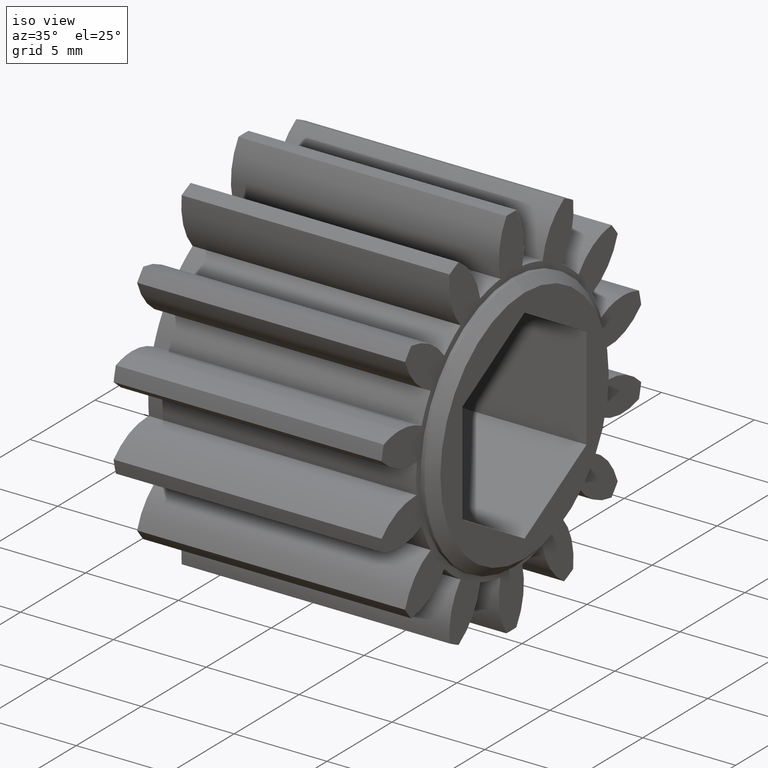
[diagram: clean part render]
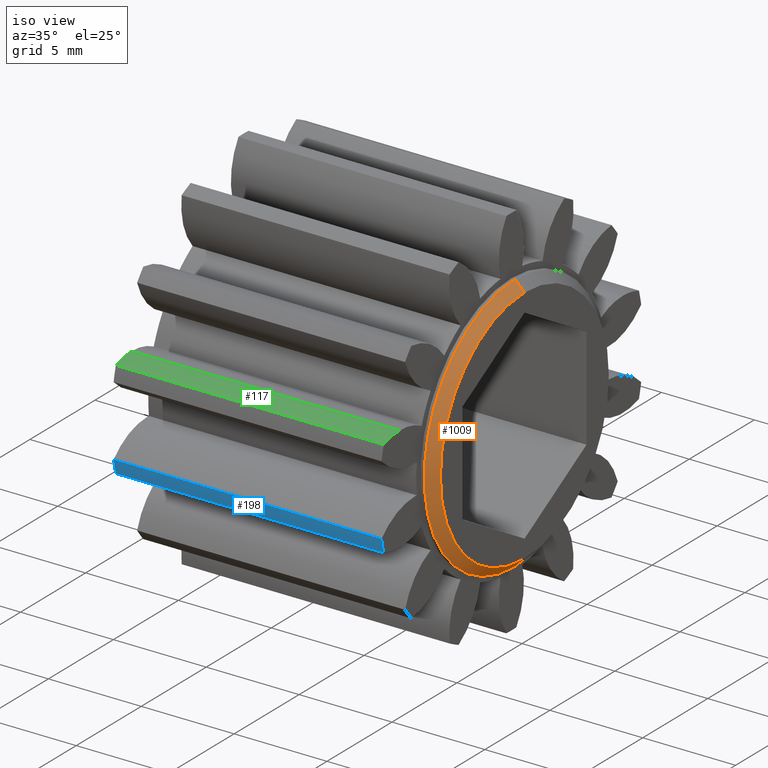
[diagram: same view with three faces highlighted in distinct colors, each labeled with its STEP entity id]
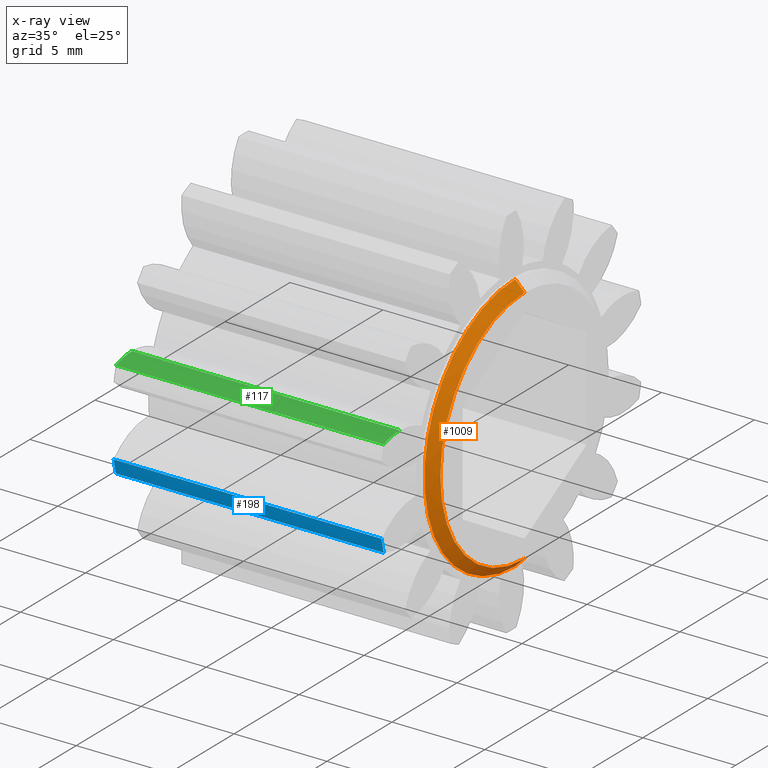
[diagram: x-ray of the same camera — body ghosted, the three highlighted faces saturated]
A machine part, iso view with three faces highlighted in distinct colors.
The next image is the same camera in x-ray (body ghosted, the three faces saturated) — at least one of them is partly hidden behind the body in this view.
Their STEP definitions:

[orange] entity #1009 — the highlighted conical surface has half-angle 45 deg.
#150 = CONICAL_SURFACE ( 'NONE', #510, 0.2549999999999997300, 0.7853981633974473900 ) ;
#163 = CARTESIAN_POINT ( 'NONE',  ( 0.5759999999999996200, 0.0000000000000000000, 0.2750000000000000200 ) ) ;
#195 = DIRECTION ( 'NONE',  ( 1.000000000000000000, 0.0000000000000000000, 0.0000000000000000000 ) ) ;
#465 = CARTESIAN_POINT ( 'NONE',  ( 0.5959999999999999700, 0.0000000000000000000, 0.0000000000000000000 ) ) ;
#510 = AXIS2_PLACEMENT_3D ( 'NONE', #2151, #2543, #2224 ) ;
#574 = DIRECTION ( 'NONE',  ( 0.0000000000000000000, 0.0000000000000000000, -1.000000000000000000 ) ) ;
#585 = DIRECTION ( 'NONE',  ( 0.0000000000000000000, 0.0000000000000000000, -1.000000000000000000 ) ) ;
#835 = EDGE_CURVE ( 'NONE', #1980, #1590, #1858, .T. ) ;
#838 = CARTESIAN_POINT ( 'NONE',  ( 0.5959999999999999700, 0.0000000000000000000, 0.2549999999999997300 ) ) ;
#947 = EDGE_CURVE ( 'NONE', #1377, #2359, #2429, .T. ) ;
#1004 = ORIENTED_EDGE ( 'NONE', *, *, #835, .T. ) ;
#1009 = ADVANCED_FACE ( 'NONE', ( #1279 ), #150, .T. ) ;
#1279 = FACE_OUTER_BOUND ( 'NONE', #1457, .T. ) ;
#1295 = CIRCLE ( 'NONE', #2212, 0.2549999999999997300 ) ;
#1377 = VERTEX_POINT ( 'NONE', #2528 ) ;
#1430 = VECTOR ( 'NONE', #2388, 39.37007874015748100 ) ;
#1457 = EDGE_LOOP ( 'NONE', ( #1507, #1716, #1004, #1673 ) ) ;
#1507 = ORIENTED_EDGE ( 'NONE', *, *, #947, .F. ) ;
#1590 = VERTEX_POINT ( 'NONE', #163 ) ;
#1652 = CIRCLE ( 'NONE', #2371, 0.2750000000000000200 ) ;
#1673 = ORIENTED_EDGE ( 'NONE', *, *, #2105, .F. ) ;
#1716 = ORIENTED_EDGE ( 'NONE', *, *, #2530, .F. ) ;
#1858 = LINE ( 'NONE', #1949, #1430 ) ;
#1862 = VECTOR ( 'NONE', #2260, 39.37007874015748100 ) ;
#1949 = CARTESIAN_POINT ( 'NONE',  ( 0.5959999999999999700, 0.0000000000000000000, 0.2549999999999997300 ) ) ;
#1980 = VERTEX_POINT ( 'NONE', #838 ) ;
#2068 = CARTESIAN_POINT ( 'NONE',  ( 0.5959999999999999700, 3.122849337825747500E-017, -0.2549999999999997300 ) ) ;
#2105 = EDGE_CURVE ( 'NONE', #2359, #1590, #1652, .T. ) ;
#2151 = CARTESIAN_POINT ( 'NONE',  ( 0.5959999999999999700, 0.0000000000000000000, 0.0000000000000000000 ) ) ;
#2193 = DIRECTION ( 'NONE',  ( -1.000000000000000000, 0.0000000000000000000, 0.0000000000000000000 ) ) ;
#2212 = AXIS2_PLACEMENT_3D ( 'NONE', #465, #195, #585 ) ;
#2224 = DIRECTION ( 'NONE',  ( 0.0000000000000000000, 0.0000000000000000000, 1.000000000000000000 ) ) ;
#2260 = DIRECTION ( 'NONE',  ( -0.7071067811865481300, 8.659560562354925500E-017, -0.7071067811865469100 ) ) ;
#2359 = VERTEX_POINT ( 'NONE', #2481 ) ;
#2371 = AXIS2_PLACEMENT_3D ( 'NONE', #2502, #2193, #574 ) ;
#2388 = DIRECTION ( 'NONE',  ( -0.7071067811865481300, 0.0000000000000000000, 0.7071067811865469100 ) ) ;
#2429 = LINE ( 'NONE', #2068, #1862 ) ;
#2481 = CARTESIAN_POINT ( 'NONE',  ( 0.5759999999999996200, 3.367778697655221900E-017, -0.2750000000000000200 ) ) ;
#2502 = CARTESIAN_POINT ( 'NONE',  ( 0.5759999999999996200, 0.0000000000000000000, 0.0000000000000000000 ) ) ;
#2528 = CARTESIAN_POINT ( 'NONE',  ( 0.5959999999999999700, 3.245314017740484400E-017, -0.2549999999999997300 ) ) ;
#2530 = EDGE_CURVE ( 'NONE', #1980, #1377, #1295, .T. ) ;
#2543 = DIRECTION ( 'NONE',  ( -1.000000000000000000, 0.0000000000000000000, 0.0000000000000000000 ) ) ;

[blue] entity #198 — the highlighted cylindrical surface (partial cylindrical patch) has radius 10.16 mm, axis along (-1, -0, -0).
#78 = AXIS2_PLACEMENT_3D ( 'NONE', #229, #1251, #575 ) ;
#181 = CYLINDRICAL_SURFACE ( 'NONE', #317, 0.4000000000000000800 ) ;
#198 = ADVANCED_FACE ( 'NONE', ( #503 ), #181, .T. ) ;
#199 = CARTESIAN_POINT ( 'NONE',  ( 0.5679999999999998400, -0.3930601726315000000, -0.07418693072836672600 ) ) ;
#220 = EDGE_LOOP ( 'NONE', ( #1534, #1896, #1889, #1350 ) ) ;
#224 = EDGE_CURVE ( 'NONE', #897, #922, #774, .T. ) ;
#229 = CARTESIAN_POINT ( 'NONE',  ( 0.5679999999999998400, 0.0000000000000000000, 0.0000000000000000000 ) ) ;
#317 = AXIS2_PLACEMENT_3D ( 'NONE', #1227, #319, #1561 ) ;
#319 = DIRECTION ( 'NONE',  ( -1.000000000000000000, -0.0000000000000000000, -0.0000000000000000000 ) ) ;
#367 = VERTEX_POINT ( 'NONE', #2225 ) ;
#503 = FACE_OUTER_BOUND ( 'NONE', #220, .T. ) ;
#575 = DIRECTION ( 'NONE',  ( 0.0000000000000000000, 0.0000000000000000000, 1.000000000000000000 ) ) ;
#673 = DIRECTION ( 'NONE',  ( -1.000000000000000000, -0.0000000000000000000, -0.0000000000000000000 ) ) ;
#689 = CARTESIAN_POINT ( 'NONE',  ( 0.0000000000000000000, 0.0000000000000000000, 0.0000000000000000000 ) ) ;
#729 = EDGE_CURVE ( 'NONE', #922, #367, #942, .T. ) ;
#764 = LINE ( 'NONE', #1679, #2015 ) ;
#774 = LINE ( 'NONE', #2081, #2097 ) ;
#780 = AXIS2_PLACEMENT_3D ( 'NONE', #689, #673, #2532 ) ;
#793 = CIRCLE ( 'NONE', #78, 0.4000000000000000800 ) ;
#897 = VERTEX_POINT ( 'NONE', #1950 ) ;
#922 = VERTEX_POINT ( 'NONE', #1371 ) ;
#942 = CIRCLE ( 'NONE', #780, 0.4000000000000000800 ) ;
#1227 = CARTESIAN_POINT ( 'NONE',  ( -0.3937007874015748300, 0.0000000000000000000, 0.0000000000000000000 ) ) ;
#1251 = DIRECTION ( 'NONE',  ( -1.000000000000000000, -0.0000000000000000000, -0.0000000000000000000 ) ) ;
#1339 = DIRECTION ( 'NONE',  ( -1.000000000000000000, -0.0000000000000000000, 0.0000000000000000000 ) ) ;
#1350 = ORIENTED_EDGE ( 'NONE', *, *, #1579, .T. ) ;
#1371 = CARTESIAN_POINT ( 'NONE',  ( 0.0000000000000000000, -0.3863234816514095100, -0.1037023024080620500 ) ) ;
#1534 = ORIENTED_EDGE ( 'NONE', *, *, #1959, .F. ) ;
#1561 = DIRECTION ( 'NONE',  ( 0.0000000000000000000, 0.0000000000000000000, 1.000000000000000000 ) ) ;
#1579 = EDGE_CURVE ( 'NONE', #897, #1585, #793, .T. ) ;
#1585 = VERTEX_POINT ( 'NONE', #199 ) ;
#1679 = CARTESIAN_POINT ( 'NONE',  ( 0.2840000000000000300, -0.3930601726315000000, -0.07418693072836671200 ) ) ;
#1889 = ORIENTED_EDGE ( 'NONE', *, *, #224, .F. ) ;
#1896 = ORIENTED_EDGE ( 'NONE', *, *, #729, .F. ) ;
#1950 = CARTESIAN_POINT ( 'NONE',  ( 0.5679999999999998400, -0.3863234816514095100, -0.1037023024080620700 ) ) ;
#1959 = EDGE_CURVE ( 'NONE', #367, #1585, #764, .T. ) ;
#2015 = VECTOR ( 'NONE', #2164, 39.37007874015748100 ) ;
#2081 = CARTESIAN_POINT ( 'NONE',  ( 0.2839999999999999700, -0.3863234816514095100, -0.1037023024080620800 ) ) ;
#2097 = VECTOR ( 'NONE', #1339, 39.37007874015748100 ) ;
#2164 = DIRECTION ( 'NONE',  ( 1.000000000000000000, 0.0000000000000000000, -0.0000000000000000000 ) ) ;
#2225 = CARTESIAN_POINT ( 'NONE',  ( 0.0000000000000000000, -0.3930601726315000000, -0.07418693072836672600 ) ) ;
#2532 = DIRECTION ( 'NONE',  ( 0.0000000000000000000, 0.0000000000000000000, 1.000000000000000000 ) ) ;

[green] entity #117 — the highlighted cylindrical surface (partial cylindrical patch) has radius 3.556 mm, axis along (-1, 0, 0).
#80 = AXIS2_PLACEMENT_3D ( 'NONE', #287, #273, #1509 ) ;
#90 = DIRECTION ( 'NONE',  ( 0.0000000000000000000, 0.0000000000000000000, 1.000000000000000000 ) ) ;
#117 = ADVANCED_FACE ( 'NONE', ( #627 ), #2519, .T. ) ;
#131 = DIRECTION ( 'NONE',  ( -1.000000000000000000, 0.0000000000000000000, 0.0000000000000000000 ) ) ;
#273 = DIRECTION ( 'NONE',  ( -1.000000000000000000, 0.0000000000000000000, 0.0000000000000000000 ) ) ;
#287 = CARTESIAN_POINT ( 'NONE',  ( 0.5679999999999998400, -0.3377263857420714800, -0.02759248906966519900 ) ) ;
#313 = CARTESIAN_POINT ( 'NONE',  ( 0.5679999999999998400, -0.3377263857420714800, -0.02759248906966519900 ) ) ;
#399 = AXIS2_PLACEMENT_3D ( 'NONE', #313, #131, #90 ) ;
#438 = CARTESIAN_POINT ( 'NONE',  ( 0.5679999999999998400, -0.3863234816514109500, 0.1037023024080567100 ) ) ;
#455 = VECTOR ( 'NONE', #866, 39.37007874015748100 ) ;
#484 = EDGE_CURVE ( 'NONE', #1767, #2038, #1714, .T. ) ;
#492 = DIRECTION ( 'NONE',  ( -1.000000000000000000, 0.0000000000000000000, 0.0000000000000000000 ) ) ;
#582 = EDGE_CURVE ( 'NONE', #1662, #2155, #681, .T. ) ;
#596 = EDGE_CURVE ( 'NONE', #2038, #1662, #599, .T. ) ;
#599 = LINE ( 'NONE', #853, #1057 ) ;
#627 = FACE_OUTER_BOUND ( 'NONE', #650, .T. ) ;
#628 = EDGE_CURVE ( 'NONE', #2155, #1767, #1881, .T. ) ;
#644 = ORIENTED_EDGE ( 'NONE', *, *, #582, .T. ) ;
#650 = EDGE_LOOP ( 'NONE', ( #1971, #1932, #644, #1528 ) ) ;
#681 = CIRCLE ( 'NONE', #937, 0.1400000000000000400 ) ;
#807 = CARTESIAN_POINT ( 'NONE',  ( 0.0000000000000000000, -0.3377263857420714800, -0.02759248906966519900 ) ) ;
#817 = DIRECTION ( 'NONE',  ( 1.000000000000000000, 0.0000000000000000000, 0.0000000000000000000 ) ) ;
#844 = DIRECTION ( 'NONE',  ( 0.0000000000000000000, 0.0000000000000000000, -1.000000000000000000 ) ) ;
#853 = CARTESIAN_POINT ( 'NONE',  ( 0.5679999999999998400, -0.3377263857420714800, 0.1124075109303348400 ) ) ;
#866 = DIRECTION ( 'NONE',  ( 1.000000000000000000, -0.0000000000000000000, -0.0000000000000000000 ) ) ;
#937 = AXIS2_PLACEMENT_3D ( 'NONE', #807, #817, #844 ) ;
#1057 = VECTOR ( 'NONE', #492, 39.37007874015748100 ) ;
#1075 = CARTESIAN_POINT ( 'NONE',  ( 0.0000000000000000000, -0.3377263857420714800, 0.1124075109303348400 ) ) ;
#1315 = CARTESIAN_POINT ( 'NONE',  ( 0.2840000000000000300, -0.3863234816514109500, 0.1037023024080567200 ) ) ;
#1509 = DIRECTION ( 'NONE',  ( 0.0000000000000000000, 0.4338837391175525100, 0.9009688679024219200 ) ) ;
#1528 = ORIENTED_EDGE ( 'NONE', *, *, #628, .T. ) ;
#1662 = VERTEX_POINT ( 'NONE', #1075 ) ;
#1714 = CIRCLE ( 'NONE', #80, 0.1400000000000000400 ) ;
#1767 = VERTEX_POINT ( 'NONE', #438 ) ;
#1881 = LINE ( 'NONE', #1315, #455 ) ;
#1930 = CARTESIAN_POINT ( 'NONE',  ( 0.0000000000000000000, -0.3863234816514109500, 0.1037023024080567100 ) ) ;
#1932 = ORIENTED_EDGE ( 'NONE', *, *, #596, .T. ) ;
#1971 = ORIENTED_EDGE ( 'NONE', *, *, #484, .T. ) ;
#2038 = VERTEX_POINT ( 'NONE', #2319 ) ;
#2155 = VERTEX_POINT ( 'NONE', #1930 ) ;
#2319 = CARTESIAN_POINT ( 'NONE',  ( 0.5679999999999998400, -0.3377263857420714800, 0.1124075109303348400 ) ) ;
#2519 = CYLINDRICAL_SURFACE ( 'NONE', #399, 0.1400000000000000400 ) ;